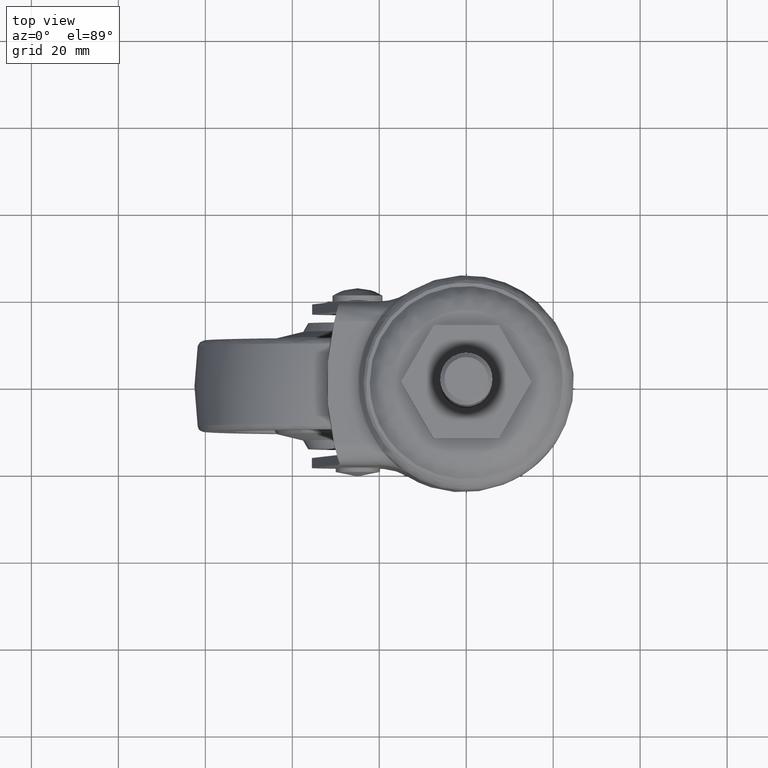
[diagram: clean part render]
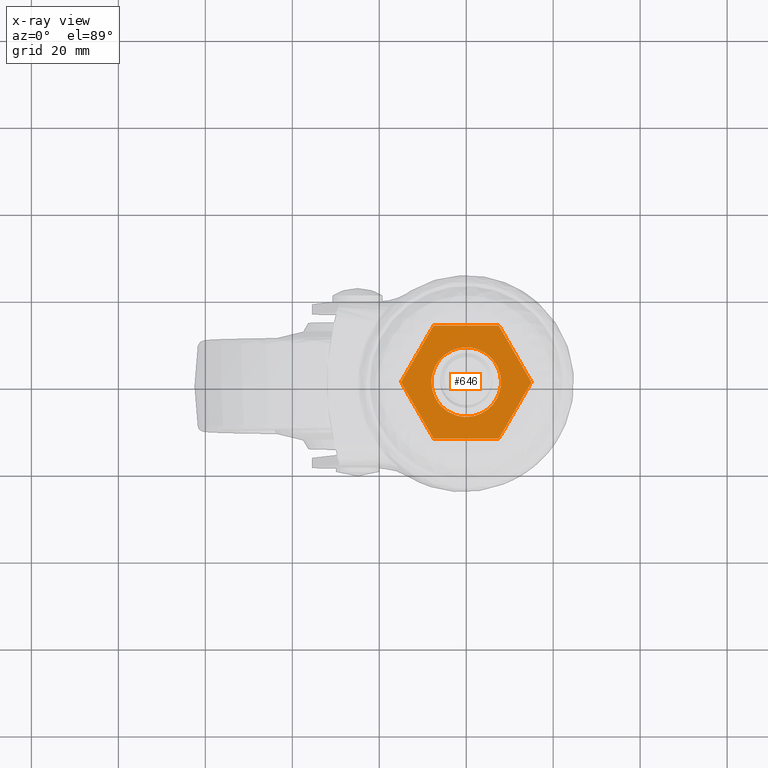
[diagram: x-ray — body ghosted, one internal face saturated and labeled with its STEP entity id]
A machine part, top view, then the same camera in x-ray: the body is ghosted and one INTERNAL B-rep face — a face not visible from any outside direction — is saturated and labeled: STEP entity #646.
In plain terms, the highlighted face is a freeform B-spline surface patch.
Its self-contained STEP definition (entity closure, byte-faithful):
#427=CARTESIAN_POINT('',(-15.011181999999900,0.0,4.099999904632568));
#428=VERTEX_POINT('',#427);
#434=CARTESIAN_POINT('',(-7.505628000000001,-13.0,4.099999904632568));
#435=VERTEX_POINT('',#434);
#436=CARTESIAN_POINT('',(-7.505628000000001,-13.0,4.099999904632568));
#437=CARTESIAN_POINT('',(-15.011181999999900,0.0,4.099999904632568));
#438=QUASI_UNIFORM_CURVE('',1,(#436,#437),.UNSPECIFIED.,.F.,.U.);
#439=EDGE_CURVE('',#435,#428,#438,.T.);
#456=CARTESIAN_POINT('',(7.505479000000000,-13.0,4.099999904632568));
#457=VERTEX_POINT('',#456);
#458=CARTESIAN_POINT('',(7.505479000000000,-13.0,4.099999904632568));
#459=CARTESIAN_POINT('',(-7.505628000000001,-13.0,4.099999904632568));
#460=QUASI_UNIFORM_CURVE('',1,(#458,#459),.UNSPECIFIED.,.F.,.U.);
#461=EDGE_CURVE('',#457,#435,#460,.T.);
#478=CARTESIAN_POINT('',(15.011032000000100,0.0,4.099999904632568));
#479=VERTEX_POINT('',#478);
#480=CARTESIAN_POINT('',(15.011032000000100,0.0,4.099999904632568));
#481=CARTESIAN_POINT('',(7.505479000000000,-13.0,4.099999904632568));
#482=QUASI_UNIFORM_CURVE('',1,(#480,#481),.UNSPECIFIED.,.F.,.U.);
#483=EDGE_CURVE('',#479,#457,#482,.T.);
#500=CARTESIAN_POINT('',(7.505479000000000,13.0,4.099999904632568));
#501=VERTEX_POINT('',#500);
#502=CARTESIAN_POINT('',(7.505479000000000,13.0,4.099999904632568));
#503=CARTESIAN_POINT('',(15.011032000000100,0.0,4.099999904632568));
#504=QUASI_UNIFORM_CURVE('',1,(#502,#503),.UNSPECIFIED.,.F.,.U.);
#505=EDGE_CURVE('',#501,#479,#504,.T.);
#522=CARTESIAN_POINT('',(-7.505628000000001,13.0,4.099999904632568));
#523=VERTEX_POINT('',#522);
#524=CARTESIAN_POINT('',(-7.505628000000001,13.0,4.099999904632568));
#525=CARTESIAN_POINT('',(7.505479000000000,13.0,4.099999904632568));
#526=QUASI_UNIFORM_CURVE('',1,(#524,#525),.UNSPECIFIED.,.F.,.U.);
#527=EDGE_CURVE('',#523,#501,#526,.T.);
#544=CARTESIAN_POINT('',(-15.011181999999900,0.0,4.099999904632568));
#545=CARTESIAN_POINT('',(-7.505628000000001,13.0,4.099999904632568));
#546=QUASI_UNIFORM_CURVE('',1,(#544,#545),.UNSPECIFIED.,.F.,.U.);
#547=EDGE_CURVE('',#428,#523,#546,.T.);
#553=CARTESIAN_POINT('',(-16.510791531111028,-14.298699949606959,4.099999904632568));
#554=CARTESIAN_POINT('',(16.510642336369749,-14.298699949606959,4.099999904632568));
#555=CARTESIAN_POINT('',(-16.510791531111028,14.298700646981301,4.099999904632568));
#556=CARTESIAN_POINT('',(16.510642336369749,14.298700646981301,4.099999904632568));
#557=B_SPLINE_SURFACE_WITH_KNOTS('',1,1,((#553,#555),(#554,#556)),.UNSPECIFIED.,.F.,.F.,.U.,(2,2),(2,2),(0.0,33.021433867480781),(0.0,28.597400596588269),.UNSPECIFIED.);
#558=ORIENTED_EDGE('',*,*,#547,.T.);
#559=ORIENTED_EDGE('',*,*,#527,.T.);
#560=ORIENTED_EDGE('',*,*,#505,.T.);
#561=ORIENTED_EDGE('',*,*,#483,.T.);
#562=ORIENTED_EDGE('',*,*,#461,.T.);
#563=ORIENTED_EDGE('',*,*,#439,.T.);
#564=EDGE_LOOP('',(#558,#559,#560,#561,#562,#563));
#565=FACE_OUTER_BOUND('',#564,.T.);
#566=CARTESIAN_POINT('',(-0.000002789092275,7.999999999999514,4.099999904632568));
#567=VERTEX_POINT('',#566);
#568=CARTESIAN_POINT('',(-8.0,0.0,4.099999904632568));
#569=VERTEX_POINT('',#568);
#570=CARTESIAN_POINT('',(-0.000002789092275,7.999999999999514,4.099999904632568));
#571=CARTESIAN_POINT('',(-0.556325835703453,8.000078309914557,4.099999904632568));
#572=CARTESIAN_POINT('',(-1.407134738513794,7.910881079391596,4.099999904632568));
#573=CARTESIAN_POINT('',(-2.704417639504339,7.560431795683757,4.099999904632568));
#574=CARTESIAN_POINT('',(-3.819072484549421,7.074508111681047,4.099999904632568));
#575=CARTESIAN_POINT('',(-4.970209311087816,6.315516709675213,4.099999904632568));
#576=CARTESIAN_POINT('',(-5.884646782826960,5.466018710037628,4.099999904632568));
#577=CARTESIAN_POINT('',(-6.657457832855632,4.488163595375760,4.099999904632568));
#578=CARTESIAN_POINT('',(-7.262644765103844,3.434989954296811,4.099999904632568));
#579=CARTESIAN_POINT('',(-7.832479711207844,1.930629572332304,4.099999904632568));
#580=CARTESIAN_POINT('',(-8.000271137182322,0.752708543973691,4.099999904632568));
#581=CARTESIAN_POINT('',(-8.0,0.0,4.099999904632568));
#582=B_SPLINE_CURVE_WITH_KNOTS('',3,(#570,#571,#572,#573,#574,#575,#576,#577,#578,#579,#580,#581),.UNSPECIFIED.,.F.,.U.,(4,1,1,1,1,1,1,1,1,4),(0.000000130084882,1.668959259158063,2.552557793525367,4.025196255102291,5.301507752882300,6.675925250617548,7.755841096104766,9.032127441648264,10.308416528509319,12.566447891018591),.UNSPECIFIED.);
#583=EDGE_CURVE('',#567,#569,#582,.T.);
#584=ORIENTED_EDGE('',*,*,#583,.T.);
#585=CARTESIAN_POINT('',(-5.706003042521589,-5.607273680146529,4.099999904634199));
#586=VERTEX_POINT('',#585);
#587=CARTESIAN_POINT('',(-8.0,0.0,4.099999904632568));
#588=CARTESIAN_POINT('',(-8.000289779041047,-0.744344379800231,4.099999904632785));
#589=CARTESIAN_POINT('',(-7.822525962814261,-2.006271442106228,4.099999904633152));
#590=CARTESIAN_POINT('',(-7.058009437341899,-3.941674858019478,4.099999904633714));
#591=CARTESIAN_POINT('',(-6.273405284061403,-5.030485442173974,4.099999904634031));
#592=CARTESIAN_POINT('',(-5.706003042521589,-5.607273680146529,4.099999904634199));
#593=B_SPLINE_CURVE_WITH_KNOTS('',3,(#587,#588,#589,#590,#591,#592),.UNSPECIFIED.,.F.,.U.,(4,1,1,4),(0.000000035583663,2.232956408322945,3.786294166029505,6.213410067361521),.UNSPECIFIED.);
#594=EDGE_CURVE('',#569,#586,#593,.T.);
#595=ORIENTED_EDGE('',*,*,#594,.T.);
#596=CARTESIAN_POINT('',(0.000002789092271,-7.999999999999513,4.099999904632568));
#597=VERTEX_POINT('',#596);
#598=CARTESIAN_POINT('',(-5.706003042521589,-5.607273680146529,4.099999904634199));
#599=CARTESIAN_POINT('',(-5.311791150963104,-6.008537830311383,4.099999904634086));
#600=CARTESIAN_POINT('',(-4.412585611483084,-6.748552756921751,4.099999904633830));
#601=CARTESIAN_POINT('',(-2.929491540248124,-7.504769152048110,4.099999904633405));
#602=CARTESIAN_POINT('',(-1.422801805774105,-7.916438838308809,4.099999904632975));
#603=CARTESIAN_POINT('',(-0.463236662091039,-8.000035993972373,4.099999904632701));
#604=CARTESIAN_POINT('',(0.000002789092271,-7.999999999999513,4.099999904632568));
#605=B_SPLINE_CURVE_WITH_KNOTS('',3,(#598,#599,#600,#601,#602,#603,#604),.UNSPECIFIED.,.F.,.U.,(4,1,1,1,4),(0.000000034276303,1.687527730607283,3.474302964466514,4.963317248746169,6.353041666336546),.UNSPECIFIED.);
#606=EDGE_CURVE('',#586,#597,#605,.T.);
#607=ORIENTED_EDGE('',*,*,#606,.T.);
#608=CARTESIAN_POINT('',(8.0,0.0,4.099999904632568));
#609=VERTEX_POINT('',#608);
#610=CARTESIAN_POINT('',(0.000002789092271,-7.999999999999513,4.099999904632568));
#611=CARTESIAN_POINT('',(0.490877146028473,-8.000054897203508,4.099999904632568));
#612=CARTESIAN_POINT('',(1.439873681239946,-7.912362653669820,4.099999904632568));
#613=CARTESIAN_POINT('',(2.959418758368035,-7.491983647646255,4.099999904632568));
#614=CARTESIAN_POINT('',(4.308986548828064,-6.802260779527258,4.099999904632568));
#615=CARTESIAN_POINT('',(5.416436435104452,-5.926831792584113,4.099999904632568));
#616=CARTESIAN_POINT('',(6.292801674086060,-4.995014722997555,4.099999904632568));
#617=CARTESIAN_POINT('',(7.066703577136186,-3.852123535344475,4.099999904632568));
#618=CARTESIAN_POINT('',(7.792282863410281,-2.159613356732195,4.099999904632568));
#619=CARTESIAN_POINT('',(8.000423756148432,-0.818178879837067,4.099999904632568));
#620=CARTESIAN_POINT('',(8.0,0.0,4.099999904632568));
#621=B_SPLINE_CURVE_WITH_KNOTS('',3,(#610,#611,#612,#613,#614,#615,#616,#617,#618,#619,#620),.UNSPECIFIED.,.F.,.U.,(4,1,1,1,1,1,1,1,4),(0.000000130085784,1.472619313555873,2.847084345103284,4.712423667645012,5.988735365965631,7.068622688462558,8.541255376739294,10.112075614257121,12.566447891018599),.UNSPECIFIED.);
#622=EDGE_CURVE('',#597,#609,#621,.T.);
#623=ORIENTED_EDGE('',*,*,#622,.T.);
#624=CARTESIAN_POINT('',(5.706003042521589,5.607273680146529,4.099999904634199));
#625=VERTEX_POINT('',#624);
#626=CARTESIAN_POINT('',(8.0,0.0,4.099999904632568));
#627=CARTESIAN_POINT('',(8.000289779041047,0.744344379800231,4.099999904632785));
#628=CARTESIAN_POINT('',(7.822525962814261,2.006271442106228,4.099999904633152));
#629=CARTESIAN_POINT('',(7.058009437341899,3.941674858019478,4.099999904633714));
#630=CARTESIAN_POINT('',(6.273405284061403,5.030485442173974,4.099999904634031));
#631=CARTESIAN_POINT('',(5.706003042521589,5.607273680146529,4.099999904634199));
#632=B_SPLINE_CURVE_WITH_KNOTS('',3,(#626,#627,#628,#629,#630,#631),.UNSPECIFIED.,.F.,.U.,(4,1,1,4),(0.000000035583663,2.232956408322945,3.786294166029505,6.213410067361521),.UNSPECIFIED.);
#633=EDGE_CURVE('',#609,#625,#632,.T.);
#634=ORIENTED_EDGE('',*,*,#633,.T.);
#635=CARTESIAN_POINT('',(5.706003042521589,5.607273680146529,4.099999904634199));
#636=CARTESIAN_POINT('',(5.149612868452159,6.173968857573406,4.099999904634040));
#637=CARTESIAN_POINT('',(4.080063109916630,6.978212460490249,4.099999904633735));
#638=CARTESIAN_POINT('',(2.117481980809424,7.801241437869279,4.099999904633173));
#639=CARTESIAN_POINT('',(0.794162110034738,8.000351072725319,4.099999904632795));
#640=CARTESIAN_POINT('',(-0.000002789092275,7.999999999999514,4.099999904632568));
#641=B_SPLINE_CURVE_WITH_KNOTS('',3,(#635,#636,#637,#638,#639,#640),.UNSPECIFIED.,.F.,.U.,(4,1,1,4),(0.000000034276346,2.382391442589091,3.970650257988030,6.353041666336551),.UNSPECIFIED.);
#642=EDGE_CURVE('',#625,#567,#641,.T.);
#643=ORIENTED_EDGE('',*,*,#642,.T.);
#644=EDGE_LOOP('',(#584,#595,#607,#623,#634,#643));
#645=FACE_BOUND('',#644,.T.);
#646=ADVANCED_FACE('',(#565,#645),#557,.F.);